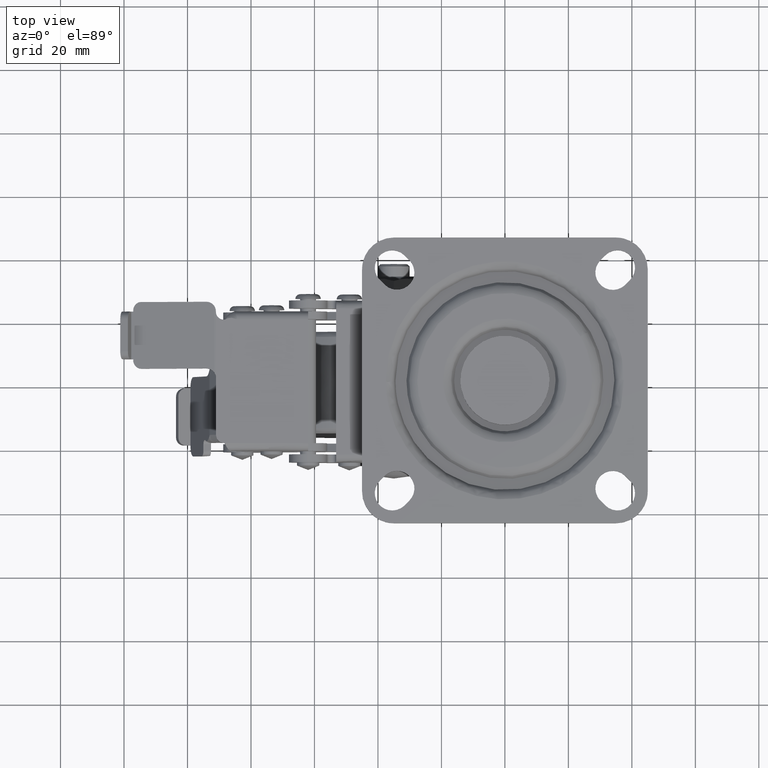
[diagram: clean part render]
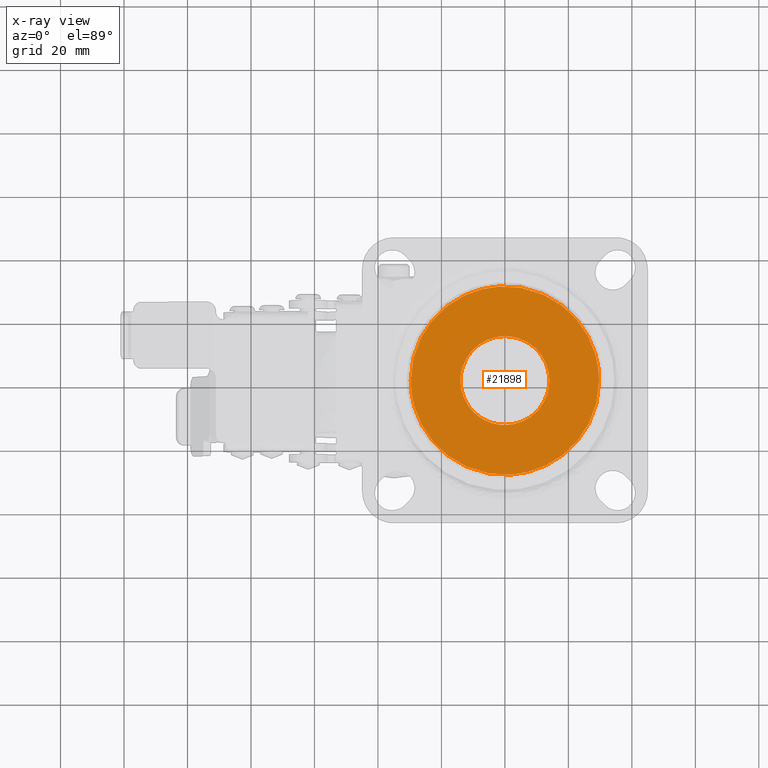
[diagram: x-ray — body ghosted, one internal face saturated and labeled with its STEP entity id]
A machine part, top view, then the same camera in x-ray: the body is ghosted and one INTERNAL B-rep face — a face not visible from any outside direction — is saturated and labeled: STEP entity #21898.
In plain terms, the highlighted face is a freeform B-spline surface patch.
Its self-contained STEP definition (entity closure, byte-faithful):
#21187=CARTESIAN_POINT('',(-1.812902194425204,29.640693586292539,-5.499999722866345));
#21188=VERTEX_POINT('',#21187);
#21189=CARTESIAN_POINT('',(29.696082868577250,0.0,-5.500000000000000));
#21190=VERTEX_POINT('',#21189);
#21191=CARTESIAN_POINT('',(-1.812902194425204,29.640693586292532,-5.499999722866344));
#21192=CARTESIAN_POINT('',(-0.907297239531038,29.696082751063777,-5.499999726848917));
#21193=CARTESIAN_POINT('',(7.076035E-009,29.696082752885129,-5.499999731082515));
#21194=CARTESIAN_POINT('',(29.696082872007175,29.696082812498553,-5.499999869649343));
#21195=CARTESIAN_POINT('',(29.696082868577250,0.0,-5.500000000000000));
#21203=(BOUNDED_CURVE()B_SPLINE_CURVE(2,(#21191,#21192,#21193,#21194,#21195),.UNSPECIFIED.,.F.,.U.)B_SPLINE_CURVE_WITH_KNOTS((3,2,3),(0.239332963914511,0.250000000000000,0.500000000000000),.UNSPECIFIED.)CURVE()GEOMETRIC_REPRESENTATION_ITEM()RATIONAL_B_SPLINE_CURVE((0.976072045257780,0.987502789862888,1.0,0.707106781186548,1.0))REPRESENTATION_ITEM(''));
#21204=EDGE_CURVE('',#21188,#21190,#21203,.T.);
#21206=CARTESIAN_POINT('',(1.812902194425206,-29.640693586292539,-5.499999722866347));
#21207=VERTEX_POINT('',#21206);
#21208=CARTESIAN_POINT('',(29.696082868577250,0.0,-5.500000000000000));
#21209=CARTESIAN_POINT('',(29.696082864931139,-27.935285529481799,-5.499999861433174));
#21210=CARTESIAN_POINT('',(1.812902194425206,-29.640693586292532,-5.499999722866347));
#21218=(BOUNDED_CURVE()B_SPLINE_CURVE(2,(#21208,#21209,#21210),.UNSPECIFIED.,.F.,.U.)B_SPLINE_CURVE_WITH_KNOTS((3,3),(0.500000000000000,0.739332963914511),.UNSPECIFIED.)CURVE()GEOMETRIC_REPRESENTATION_ITEM()RATIONAL_B_SPLINE_CURVE((1.0,0.719603991323660,0.976072045257780))REPRESENTATION_ITEM(''));
#21219=EDGE_CURVE('',#21190,#21207,#21218,.T.);
#21255=CARTESIAN_POINT('',(-29.696082868577250,0.0,-5.500000000000000));
#21256=VERTEX_POINT('',#21255);
#21257=CARTESIAN_POINT('',(-29.696082868577250,0.0,-5.500000000000000));
#21258=CARTESIAN_POINT('',(-29.696082864931139,27.935285529481799,-5.499999861433173));
#21259=CARTESIAN_POINT('',(-1.812902194425204,29.640693586292532,-5.499999722866344));
#21267=(BOUNDED_CURVE()B_SPLINE_CURVE(2,(#21257,#21258,#21259),.UNSPECIFIED.,.F.,.U.)B_SPLINE_CURVE_WITH_KNOTS((3,3),(0.0,0.239332963914511),.UNSPECIFIED.)CURVE()GEOMETRIC_REPRESENTATION_ITEM()RATIONAL_B_SPLINE_CURVE((1.0,0.719603991323660,0.976072045257780))REPRESENTATION_ITEM(''));
#21268=EDGE_CURVE('',#21256,#21188,#21267,.T.);
#21275=CARTESIAN_POINT('',(1.812902194425206,-29.640693586292532,-5.499999722866347));
#21276=CARTESIAN_POINT('',(0.907297239531040,-29.696082751063777,-5.499999726848919));
#21277=CARTESIAN_POINT('',(-7.076033E-009,-29.696082752885129,-5.499999731082517));
#21278=CARTESIAN_POINT('',(-29.696082872007175,-29.696082812498553,-5.499999869649344));
#21279=CARTESIAN_POINT('',(-29.696082868577250,0.0,-5.500000000000000));
#21287=(BOUNDED_CURVE()B_SPLINE_CURVE(2,(#21275,#21276,#21277,#21278,#21279),.UNSPECIFIED.,.F.,.U.)B_SPLINE_CURVE_WITH_KNOTS((3,2,3),(0.739332963914511,0.750000000000000,1.0),.UNSPECIFIED.)CURVE()GEOMETRIC_REPRESENTATION_ITEM()RATIONAL_B_SPLINE_CURVE((0.976072045257780,0.987502789862888,1.0,0.707106781186548,1.0))REPRESENTATION_ITEM(''));
#21288=EDGE_CURVE('',#21207,#21256,#21287,.T.);
#21821=CARTESIAN_POINT('',(-32.662721432034580,-32.661990089111079,-5.500000000000000));
#21822=CARTESIAN_POINT('',(32.662723025056593,-32.661990089111079,-5.500000000000000));
#21823=CARTESIAN_POINT('',(-32.662721432034580,32.661989558103741,-5.500000000000000));
#21824=CARTESIAN_POINT('',(32.662723025056593,32.661989558103741,-5.500000000000000));
#21825=B_SPLINE_SURFACE_WITH_KNOTS('',1,1,((#21821,#21823),(#21822,#21824)),.UNSPECIFIED.,.F.,.F.,.U.,(2,2),(2,2),(0.0,65.325444457091180),(0.0,65.323979647214827),.UNSPECIFIED.);
#21826=ORIENTED_EDGE('',*,*,#21288,.F.);
#21827=ORIENTED_EDGE('',*,*,#21219,.F.);
#21828=ORIENTED_EDGE('',*,*,#21204,.F.);
#21829=ORIENTED_EDGE('',*,*,#21268,.F.);
#21830=EDGE_LOOP('',(#21826,#21827,#21828,#21829));
#21831=FACE_OUTER_BOUND('',#21830,.T.);
#21832=CARTESIAN_POINT('',(-14.0,0.0,-5.500000000000000));
#21833=VERTEX_POINT('',#21832);
#21834=CARTESIAN_POINT('',(0.122171497201911,-13.999466922896440,-5.500000000000000));
#21835=VERTEX_POINT('',#21834);
#21836=CARTESIAN_POINT('',(-14.0,0.0,-5.500000000000000));
#21837=CARTESIAN_POINT('',(-13.999999999999998,-13.999999999999998,-5.500000000000000));
#21838=CARTESIAN_POINT('',(0.0,-14.0,-5.500000000000000));
#21839=CARTESIAN_POINT('',(0.061086911602165,-13.999999999999996,-5.500000000000000));
#21840=CARTESIAN_POINT('',(0.122171497201908,-13.999466922896442,-5.500000000000001));
#21848=(BOUNDED_CURVE()B_SPLINE_CURVE(2,(#21836,#21837,#21838,#21839,#21840),.UNSPECIFIED.,.F.,.U.)B_SPLINE_CURVE_WITH_KNOTS((3,2,3),(0.500000000000000,0.750000000000000,0.751539894337814),.UNSPECIFIED.)CURVE()GEOMETRIC_REPRESENTATION_ITEM()RATIONAL_B_SPLINE_CURVE((1.0,0.707106781186547,1.0,0.998195901563060,0.996414028093864))REPRESENTATION_ITEM(''));
#21849=EDGE_CURVE('',#21833,#21835,#21848,.T.);
#21850=ORIENTED_EDGE('',*,*,#21849,.F.);
#21851=CARTESIAN_POINT('',(-0.122171497201911,13.999466922896440,-5.500000000000000));
#21852=VERTEX_POINT('',#21851);
#21853=CARTESIAN_POINT('',(-0.122171497201908,13.999466922896442,-5.500000000000001));
#21854=CARTESIAN_POINT('',(-14.0,13.878356948106957,-5.500000000000001));
#21855=CARTESIAN_POINT('',(-14.0,0.0,-5.500000000000000));
#21863=(BOUNDED_CURVE()B_SPLINE_CURVE(2,(#21853,#21854,#21855),.UNSPECIFIED.,.F.,.U.)B_SPLINE_CURVE_WITH_KNOTS((3,3),(0.251539894337814,0.500000000000000),.UNSPECIFIED.)CURVE()GEOMETRIC_REPRESENTATION_ITEM()RATIONAL_B_SPLINE_CURVE((0.996414028093864,0.708910879623487,1.0))REPRESENTATION_ITEM(''));
#21864=EDGE_CURVE('',#21852,#21833,#21863,.T.);
#21865=ORIENTED_EDGE('',*,*,#21864,.F.);
#21866=CARTESIAN_POINT('',(14.0,0.0,-5.500000000000000));
#21867=VERTEX_POINT('',#21866);
#21868=CARTESIAN_POINT('',(14.0,0.0,-5.500000000000000));
#21869=CARTESIAN_POINT('',(13.999999999999998,13.999999999999998,-5.500000000000000));
#21870=CARTESIAN_POINT('',(0.0,14.0,-5.500000000000000));
#21871=CARTESIAN_POINT('',(-0.061086911602165,13.999999999999996,-5.500000000000000));
#21872=CARTESIAN_POINT('',(-0.122171497201908,13.999466922896442,-5.500000000000001));
#21880=(BOUNDED_CURVE()B_SPLINE_CURVE(2,(#21868,#21869,#21870,#21871,#21872),.UNSPECIFIED.,.F.,.U.)B_SPLINE_CURVE_WITH_KNOTS((3,2,3),(0.0,0.250000000000000,0.251539894337814),.UNSPECIFIED.)CURVE()GEOMETRIC_REPRESENTATION_ITEM()RATIONAL_B_SPLINE_CURVE((1.0,0.707106781186547,1.0,0.998195901563060,0.996414028093864))REPRESENTATION_ITEM(''));
#21881=EDGE_CURVE('',#21867,#21852,#21880,.T.);
#21882=ORIENTED_EDGE('',*,*,#21881,.F.);
#21883=CARTESIAN_POINT('',(0.122171497201908,-13.999466922896442,-5.500000000000001));
#21884=CARTESIAN_POINT('',(14.0,-13.878356948106957,-5.500000000000001));
#21885=CARTESIAN_POINT('',(14.0,0.0,-5.500000000000000));
#21893=(BOUNDED_CURVE()B_SPLINE_CURVE(2,(#21883,#21884,#21885),.UNSPECIFIED.,.F.,.U.)B_SPLINE_CURVE_WITH_KNOTS((3,3),(0.751539894337814,1.0),.UNSPECIFIED.)CURVE()GEOMETRIC_REPRESENTATION_ITEM()RATIONAL_B_SPLINE_CURVE((0.996414028093864,0.708910879623487,1.0))REPRESENTATION_ITEM(''));
#21894=EDGE_CURVE('',#21835,#21867,#21893,.T.);
#21895=ORIENTED_EDGE('',*,*,#21894,.F.);
#21896=EDGE_LOOP('',(#21850,#21865,#21882,#21895));
#21897=FACE_BOUND('',#21896,.T.);
#21898=ADVANCED_FACE('',(#21831,#21897),#21825,.T.);